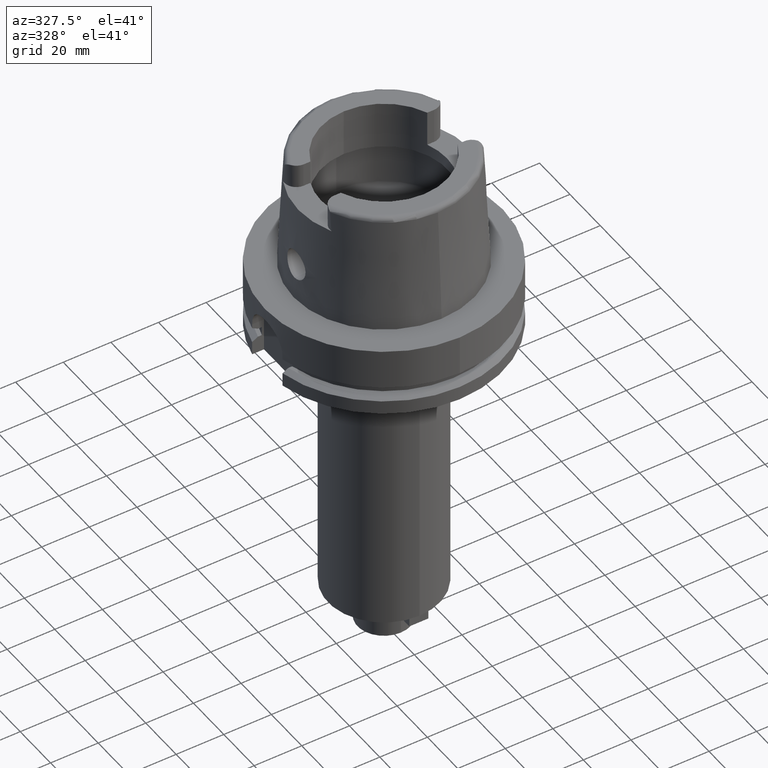
[diagram: clean part render]
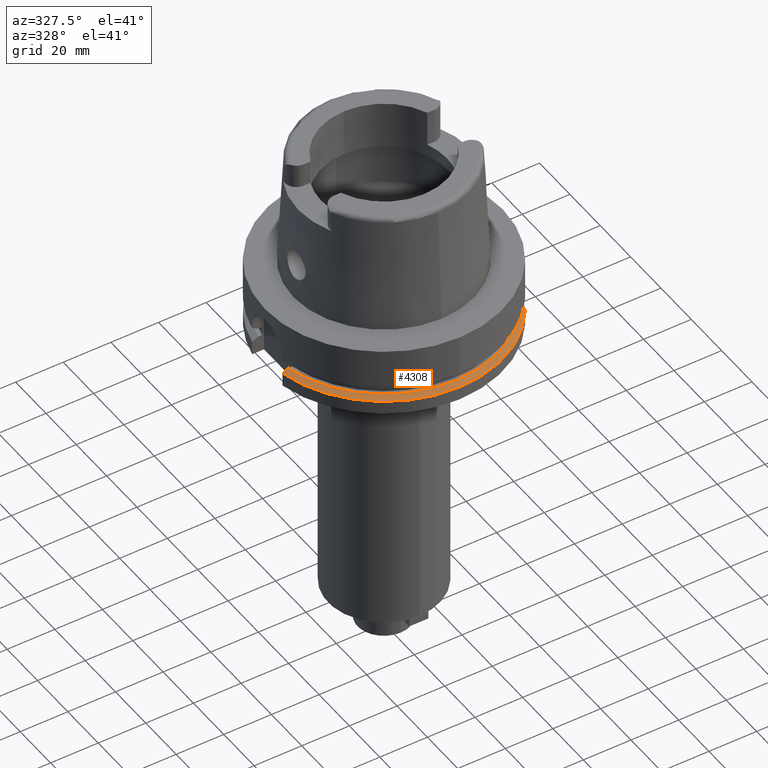
[diagram: same view with one face highlighted and labeled with its STEP entity id]
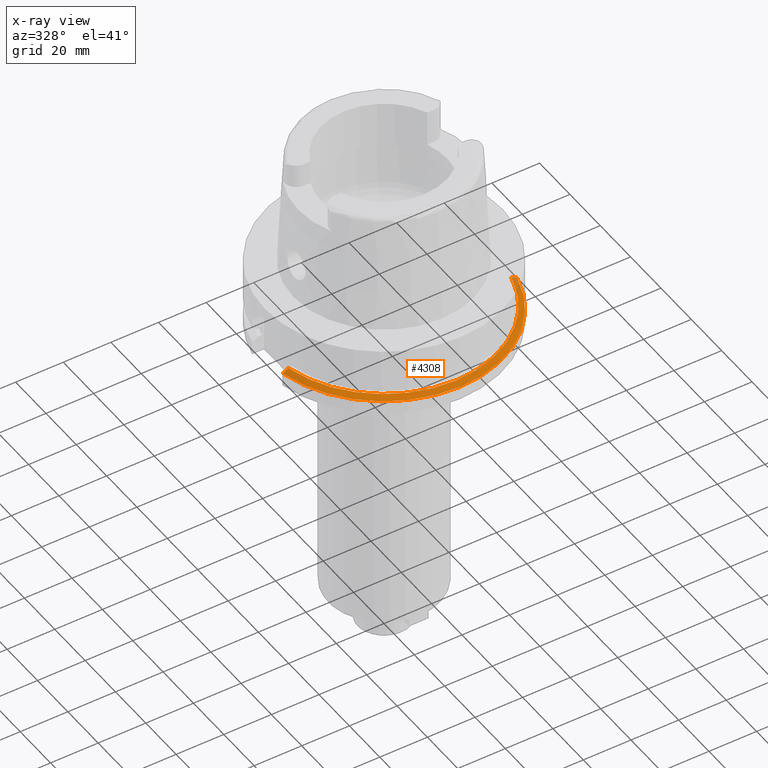
[diagram: x-ray of the same camera — body ghosted, the highlighted face saturated]
A machine part, auxiliary view. The second image highlights one B-rep face of the part: STEP entity #4308.
The next image is the same camera in x-ray: the body ghosted, the highlighted face saturated — about 4% of this face is hidden behind the body in this view.
In plain terms, the highlighted conical surface has half-angle 60 deg.
Its self-contained STEP definition (entity closure, byte-faithful):
#1995=CARTESIAN_POINT('',(0.E0,0.E0,-2.1875E1));
#1996=DIRECTION('',(0.E0,0.E0,-1.E0));
#1997=DIRECTION('',(9.729578356533E-1,-2.309827916554E-1,0.E0));
#1998=AXIS2_PLACEMENT_3D('',#1995,#1996,#1997);
#2003=CARTESIAN_POINT('',(0.E0,0.E0,-2.1875E1));
#2004=DIRECTION('',(0.E0,0.E0,-1.E0));
#2005=DIRECTION('',(0.E0,-1.E0,0.E0));
#2006=AXIS2_PLACEMENT_3D('',#2003,#2004,#2005);
#2011=CARTESIAN_POINT('',(-4.898979485566E1,-1.E1,-2.324759526419E1));
#2012=CARTESIAN_POINT('',(-4.872002593966E1,-1.E1,-2.309499092031E1));
#2013=CARTESIAN_POINT('',(-4.818041161677E1,-1.E1,-2.278984413389E1));
#2014=CARTESIAN_POINT('',(-4.737076227628E1,-1.E1,-2.233230648793E1));
#2015=CARTESIAN_POINT('',(-4.683084020607E1,-1.E1,-2.202741066863E1));
#2016=CARTESIAN_POINT('',(-4.656083740330E1,-1.E1,-2.1875E1));
#2021=CARTESIAN_POINT('',(4.633477721644E1,-1.1E1,-2.1875E1));
#2022=CARTESIAN_POINT('',(4.660605711265E1,-1.1E1,-2.202738808211E1));
#2023=CARTESIAN_POINT('',(4.714851446811E1,-1.1E1,-2.233225649733E1));
#2024=CARTESIAN_POINT('',(4.796191616323E1,-1.1E1,-2.278979543230E1));
#2025=CARTESIAN_POINT('',(4.850399904748E1,-1.1E1,-2.309496975038E1));
#2026=CARTESIAN_POINT('',(4.877499359303E1,-1.1E1,-2.324759526419E1));
#2031=CARTESIAN_POINT('',(0.E0,0.E0,-2.324759526419E1));
#2032=DIRECTION('',(0.E0,0.E0,-1.E0));
#2033=DIRECTION('',(9.754998718606E-1,-2.2E-1,0.E0));
#2034=AXIS2_PLACEMENT_3D('',#2031,#2032,#2033);
#2039=CARTESIAN_POINT('',(0.E0,0.E0,-2.324759526419E1));
#2040=DIRECTION('',(0.E0,0.E0,-1.E0));
#2041=DIRECTION('',(0.E0,-1.E0,0.E0));
#2042=AXIS2_PLACEMENT_3D('',#2039,#2040,#2041);
#2693=CARTESIAN_POINT('',(-4.898979485566E1,-1.E1,-2.324759526419E1));
#2694=VERTEX_POINT('',#2693);
#2695=CARTESIAN_POINT('',(4.877499359303E1,-1.1E1,-2.324759526419E1));
#2696=CARTESIAN_POINT('',(-2.664535259100E-14,-5.E1,-2.324759526419E1));
#2697=VERTEX_POINT('',#2695);
#2698=VERTEX_POINT('',#2696);
#2718=CARTESIAN_POINT('',(-4.656083740330E1,-1.E1,-2.1875E1));
#2719=VERTEX_POINT('',#2718);
#2734=CARTESIAN_POINT('',(3.839522673045E-14,-4.762259526419E1,-2.1875E1));
#2735=VERTEX_POINT('',#2734);
#2736=CARTESIAN_POINT('',(4.633477721644E1,-1.1E1,-2.1875E1));
#2737=VERTEX_POINT('',#2736);
#4295=CARTESIAN_POINT('',(0.E0,0.E0,-2.256129763210E1));
#4296=DIRECTION('',(0.E0,0.E0,-1.E0));
#4297=DIRECTION('',(0.E0,-1.E0,0.E0));
#4298=AXIS2_PLACEMENT_3D('',#4295,#4296,#4297);
#4299=CONICAL_SURFACE('',#4298,4.881129763209E1,6.E1);
#4300=ORIENTED_EDGE('',*,*,#3965,.T.);
#4301=ORIENTED_EDGE('',*,*,#4290,.F.);
#4302=ORIENTED_EDGE('',*,*,#4288,.F.);
#4303=ORIENTED_EDGE('',*,*,#3910,.T.);
#4304=ORIENTED_EDGE('',*,*,#3937,.T.);
#4305=ORIENTED_EDGE('',*,*,#3935,.T.);
#4306=EDGE_LOOP('',(#4300,#4301,#4302,#4303,#4304,#4305));
#4307=FACE_OUTER_BOUND('',#4306,.F.);
#1999=CIRCLE('',#1998,4.762259526419E1);
#2007=CIRCLE('',#2006,4.762259526419E1);
#2017=B_SPLINE_CURVE_WITH_KNOTS('',3,(#2011,#2012,#2013,#2014,#2015,#2016),
.UNSPECIFIED.,.F.,.F.,(4,1,1,4),(0.E0,3.333333333333E-1,6.666666666667E-1,1.E0),
.UNSPECIFIED.);
#2027=B_SPLINE_CURVE_WITH_KNOTS('',3,(#2021,#2022,#2023,#2024,#2025,#2026),
.UNSPECIFIED.,.F.,.F.,(4,1,1,4),(0.E0,3.333333333333E-1,6.666666666667E-1,1.E0),
.UNSPECIFIED.);
#2035=CIRCLE('',#2034,5.E1);
#2043=CIRCLE('',#2042,5.E1);
#3910=EDGE_CURVE('',#2737,#2697,#2027,.T.);
#3935=EDGE_CURVE('',#2698,#2694,#2043,.T.);
#3937=EDGE_CURVE('',#2697,#2698,#2035,.T.);
#3965=EDGE_CURVE('',#2694,#2719,#2017,.T.);
#4288=EDGE_CURVE('',#2737,#2735,#1999,.T.);
#4290=EDGE_CURVE('',#2735,#2719,#2007,.T.);
#4308=ADVANCED_FACE('',(#4307),#4299,.T.);